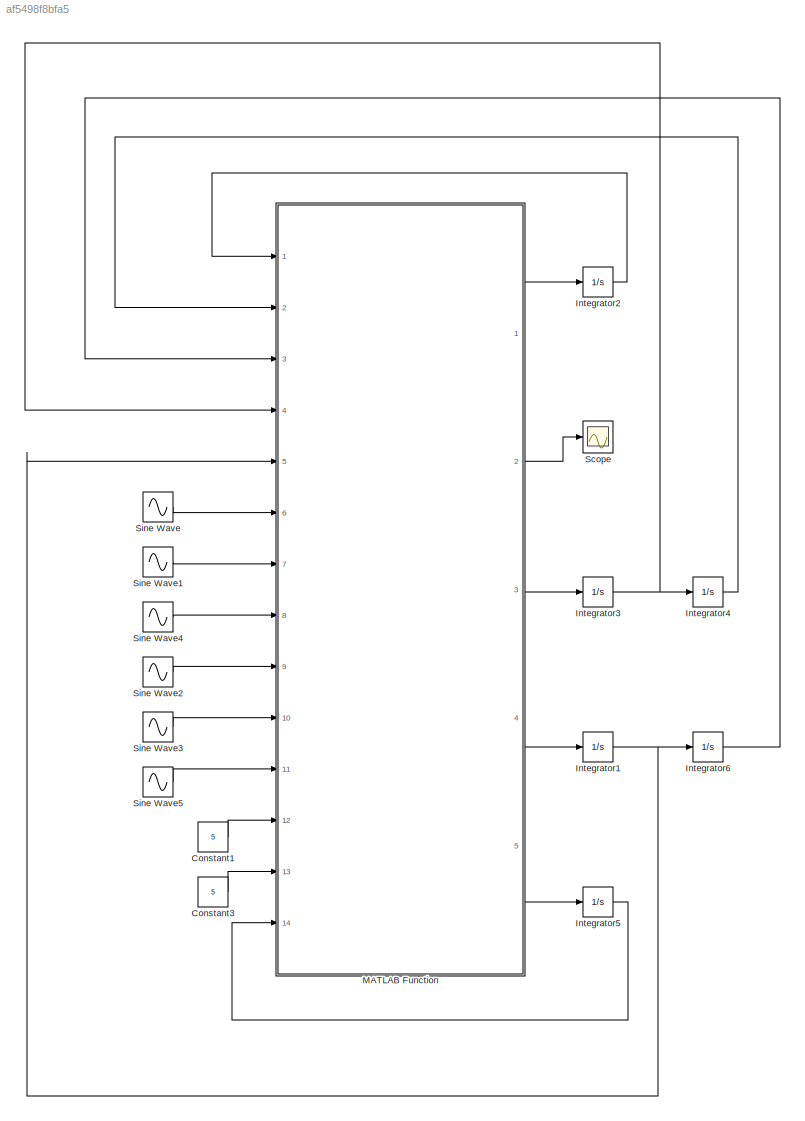
MODEL slx_af5498f8bfa5
KIND model
BLOCK [Constant] Constant1
  Value = 5
BLOCK [Constant] Constant3
  Value = 5
BLOCK [Integrator] Integrator1
  InitialCondition = 10
  Ports = [1, 1]
BLOCK [Integrator] Integrator2
  InitialCondition = 10
  Ports = [1, 1]
BLOCK [Integrator] Integrator3
  InitialCondition = 10
  Ports = [1, 1]
BLOCK [Integrator] Integrator4
  InitialCondition = 10
  Ports = [1, 1]
BLOCK [Integrator] Integrator5
  InitialCondition = 10
  Ports = [1, 1]
BLOCK [Integrator] Integrator6
  InitialCondition = 10
  Ports = [1, 1]
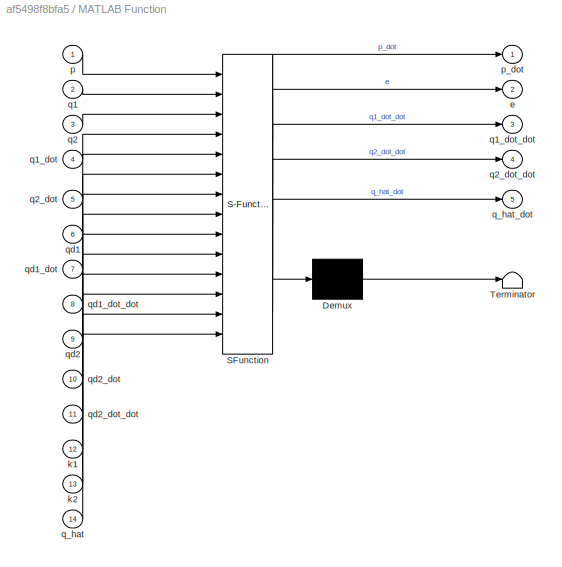
BLOCK [SubSystem] MATLAB Function
  ErrorFcn = Stateflow.Translate.translate
  PermitHierarchicalResolution = ExplicitOnly
  Ports = [14, 5]
  RequestExecContextInheritance = off
  SFBlockType = MATLAB Function
  TreatAsAtomicUnit = on
BLOCK [Demux] MATLAB Function/ Demux 
  Outputs = 1
  Ports = [1, 1]
BLOCK [S-Function] MATLAB Function/ SFunction 
  EnableBusSupport = on
  FunctionName = sf_sfun
  PortCounts = [14 6]
  Ports = [14, 6]
  Tag = Stateflow S-Function twolink_observer 2
BLOCK [Terminator] MATLAB Function/ Terminator 
BLOCK [Outport] MATLAB Function/e
  IconDisplay = Port number
  Port = 2
BLOCK [Inport] MATLAB Function/k1
  IconDisplay = Port number
  Port = 12
BLOCK [Inport] MATLAB Function/k2
  IconDisplay = Port number
  Port = 13
BLOCK [Inport] MATLAB Function/p
  IconDisplay = Port number
BLOCK [Outport] MATLAB Function/p_dot
  IconDisplay = Port number
BLOCK [Inport] MATLAB Function/q1
  IconDisplay = Port number
  Port = 2
BLOCK [Inport] MATLAB Function/q1_dot
  IconDisplay = Port number
  Port = 4
BLOCK [Outport] MATLAB Function/q1_dot_dot
  IconDisplay = Port number
  Port = 3
BLOCK [Inport] MATLAB Function/q2
  IconDisplay = Port number
  Port = 3
BLOCK [Inport] MATLAB Function/q2_dot
  IconDisplay = Port number
  Port = 5
BLOCK [Outport] MATLAB Function/q2_dot_dot
  IconDisplay = Port number
  Port = 4
BLOCK [Inport] MATLAB Function/q_hat
  IconDisplay = Port number
  Port = 14
BLOCK [Outport] MATLAB Function/q_hat_dot
  IconDisplay = Port number
  Port = 5
BLOCK [Inport] MATLAB Function/qd1
  IconDisplay = Port number
  Port = 6
BLOCK [Inport] MATLAB Function/qd1_dot
  IconDisplay = Port number
  Port = 7
BLOCK [Inport] MATLAB Function/qd1_dot_dot
  IconDisplay = Port number
  Port = 8
BLOCK [Inport] MATLAB Function/qd2
  IconDisplay = Port number
  Port = 9
BLOCK [Inport] MATLAB Function/qd2_dot
  IconDisplay = Port number
  Port = 10
BLOCK [Inport] MATLAB Function/qd2_dot_dot
  IconDisplay = Port number
  Port = 11
BLOCK [Scope] Scope
  Floating = off
  NumInputPorts = 1
  Ports = [1]
  ShowLegends = off
BLOCK [Sin] Sine Wave
  Ports = [0, 1]
  SampleTime = 0
BLOCK [Sin] Sine Wave1
  Phase = pi/2
  Ports = [0, 1]
  SampleTime = 0
BLOCK [Sin] Sine Wave2
  Ports = [0, 1]
  SampleTime = 0
BLOCK [Sin] Sine Wave3
  Phase = pi/2
  Ports = [0, 1]
  SampleTime = 0
BLOCK [Sin] Sine Wave4
  Phase = pi
  Ports = [0, 1]
  SampleTime = 0
BLOCK [Sin] Sine Wave5
  Phase = pi
  Ports = [0, 1]
  SampleTime = 0
LINE Constant1:1 -> MATLAB Function:12
LINE Constant3:1 -> MATLAB Function:13
NET Integrator1:1 -> Integrator6:1, MATLAB Function:5
LINE Integrator2:1 -> MATLAB Function:1
NET Integrator3:1 -> Integrator4:1, MATLAB Function:4
LINE Integrator4:1 -> MATLAB Function:2
LINE Integrator5:1 -> MATLAB Function:14
LINE Integrator6:1 -> MATLAB Function:3
LINE MATLAB Function:1 -> Integrator2:1
LINE MATLAB Function:2 -> Scope:1
LINE MATLAB Function:3 -> Integrator3:1
LINE MATLAB Function:4 -> Integrator1:1
LINE MATLAB Function:5 -> Integrator5:1
LINE Sine Wave1:1 -> MATLAB Function:7
LINE Sine Wave2:1 -> MATLAB Function:9
LINE Sine Wave3:1 -> MATLAB Function:10
LINE Sine Wave4:1 -> MATLAB Function:8
LINE Sine Wave5:1 -> MATLAB Function:11
LINE Sine Wave:1 -> MATLAB Function:6
note: NET lines group one-source signal fan-out (src -> all destinations, sorted); 1:1 wires keep LINE
